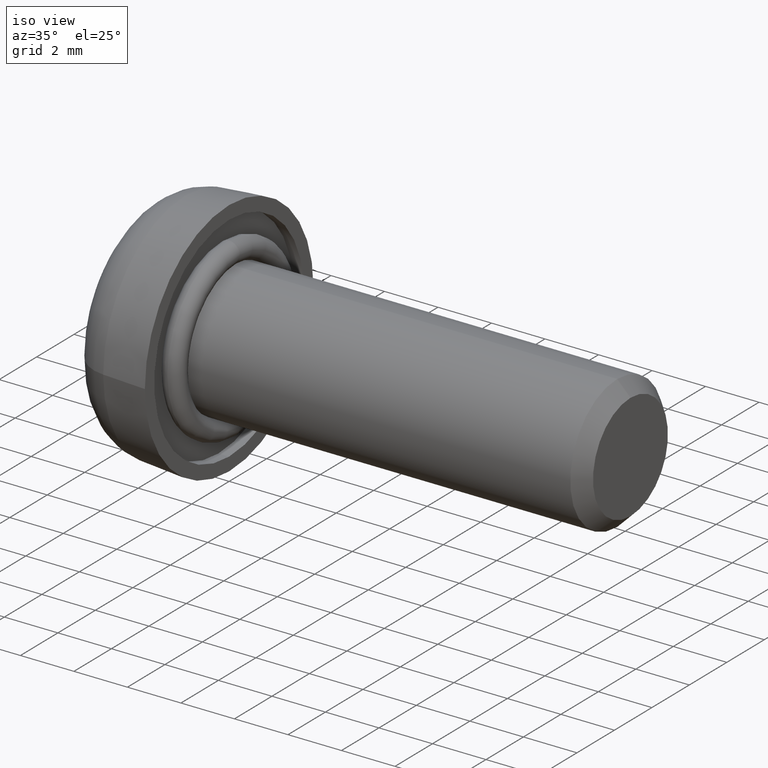
[diagram: clean part render]
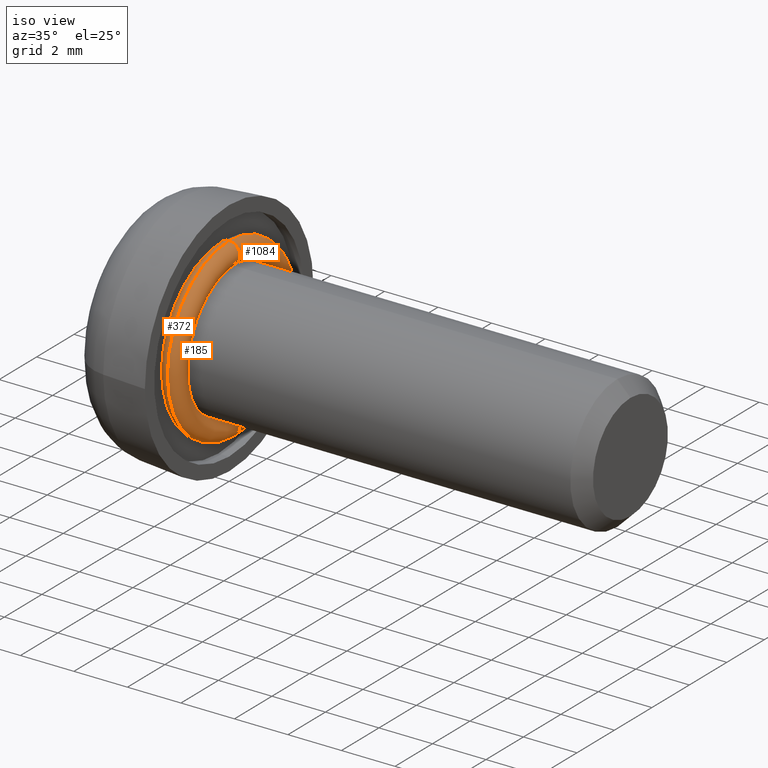
[diagram: same view with one multi-face feature highlighted, each face labeled with its STEP entity id]
A machine part, iso view. The highlighted faces form ONE feature: a constant-radius fillet chain: 3 tangent blend faces with common blend radius 0.4 mm. The faces share edges in the B-rep.
Their STEP definitions:
[1] entity #1084 (Torus):
#37 = VERTEX_POINT ( 'NONE', #373 ) ;
#70 = CIRCLE ( 'NONE', #605, 2.499999999999999600 ) ;
#79 = DIRECTION ( 'NONE',  ( 1.000000000000000000, -0.0000000000000000000, -0.0000000000000000000 ) ) ;
#106 = CIRCLE ( 'NONE', #1192, 0.4000000000000001900 ) ;
#116 = DIRECTION ( 'NONE',  ( 1.000000000000000000, -0.0000000000000000000, -0.0000000000000000000 ) ) ;
#139 = EDGE_CURVE ( 'NONE', #996, #819, #106, .T. ) ;
#162 = ORIENTED_EDGE ( 'NONE', *, *, #1039, .F. ) ;
#204 = AXIS2_PLACEMENT_3D ( 'NONE', #1121, #925, #329 ) ;
#230 = CARTESIAN_POINT ( 'NONE',  ( 0.0000000000000000000, 0.0000000000000000000, -3.299999999999999800 ) ) ;
#233 = CIRCLE ( 'NONE', #204, 0.4000000000000001900 ) ;
#241 = DIRECTION ( 'NONE',  ( 0.0000000000000000000, 1.000000000000000000, -1.224646799147353200E-016 ) ) ;
#283 = CARTESIAN_POINT ( 'NONE',  ( 0.0000000000000000000, 3.551475717527323800E-016, 2.899999999999999900 ) ) ;
#295 = ORIENTED_EDGE ( 'NONE', *, *, #139, .T. ) ;
#306 = EDGE_LOOP ( 'NONE', ( #983, #1079, #295, #162 ) ) ;
#329 = DIRECTION ( 'NONE',  ( 0.0000000000000000000, 0.0000000000000000000, -1.000000000000000000 ) ) ;
#338 = DIRECTION ( 'NONE',  ( 1.000000000000000000, -0.0000000000000000000, -0.0000000000000000000 ) ) ;
#349 = CARTESIAN_POINT ( 'NONE',  ( -4.898587196589413700E-017, 0.0000000000000000000, 0.0000000000000000000 ) ) ;
#373 = CARTESIAN_POINT ( 'NONE',  ( -4.898587196589412500E-017, 0.0000000000000000000, -2.499999999999999600 ) ) ;
#433 = DIRECTION ( 'NONE',  ( 0.0000000000000000000, 1.224646799147353200E-016, 1.000000000000000000 ) ) ;
#517 = AXIS2_PLACEMENT_3D ( 'NONE', #922, #116, #618 ) ;
#575 = CARTESIAN_POINT ( 'NONE',  ( 0.0000000000000000000, 4.041334437186265500E-016, 3.299999999999999800 ) ) ;
#605 = AXIS2_PLACEMENT_3D ( 'NONE', #349, #338, #1042 ) ;
#618 = DIRECTION ( 'NONE',  ( 0.0000000000000000000, 0.0000000000000000000, -1.000000000000000000 ) ) ;
#622 = EDGE_CURVE ( 'NONE', #958, #37, #233, .T. ) ;
#658 = DIRECTION ( 'NONE',  ( 0.0000000000000000000, 0.0000000000000000000, -1.000000000000000000 ) ) ;
#680 = CARTESIAN_POINT ( 'NONE',  ( -4.898587196589412500E-017, 3.061616997868382600E-016, 2.499999999999999600 ) ) ;
#819 = VERTEX_POINT ( 'NONE', #680 ) ;
#922 = CARTESIAN_POINT ( 'NONE',  ( 0.0000000000000000000, 0.0000000000000000000, 0.0000000000000000000 ) ) ;
#925 = DIRECTION ( 'NONE',  ( -0.0000000000000000000, -1.000000000000000000, -0.0000000000000000000 ) ) ;
#958 = VERTEX_POINT ( 'NONE', #230 ) ;
#962 = CARTESIAN_POINT ( 'NONE',  ( 0.0000000000000000000, 0.0000000000000000000, 0.0000000000000000000 ) ) ;
#983 = ORIENTED_EDGE ( 'NONE', *, *, #622, .F. ) ;
#996 = VERTEX_POINT ( 'NONE', #575 ) ;
#1004 = TOROIDAL_SURFACE ( 'NONE', #1083, 2.899999999999999900, 0.4000000000000000800 ) ;
#1039 = EDGE_CURVE ( 'NONE', #37, #819, #70, .T. ) ;
#1042 = DIRECTION ( 'NONE',  ( 0.0000000000000000000, 0.0000000000000000000, -1.000000000000000000 ) ) ;
#1079 = ORIENTED_EDGE ( 'NONE', *, *, #1249, .T. ) ;
#1083 = AXIS2_PLACEMENT_3D ( 'NONE', #962, #79, #658 ) ;
#1084 = ADVANCED_FACE ( 'NONE', ( #1259 ), #1004, .T. ) ;
#1121 = CARTESIAN_POINT ( 'NONE',  ( 0.0000000000000000000, 0.0000000000000000000, -2.899999999999999900 ) ) ;
#1164 = CIRCLE ( 'NONE', #517, 3.299999999999999800 ) ;
#1192 = AXIS2_PLACEMENT_3D ( 'NONE', #283, #241, #433 ) ;
#1249 = EDGE_CURVE ( 'NONE', #958, #996, #1164, .T. ) ;
#1259 = FACE_OUTER_BOUND ( 'NONE', #306, .T. ) ;
[2] entity #185 (Torus):
#12 = EDGE_CURVE ( 'NONE', #996, #958, #676, .T. ) ;
#37 = VERTEX_POINT ( 'NONE', #373 ) ;
#43 = CARTESIAN_POINT ( 'NONE',  ( -4.898587196589413700E-017, 0.0000000000000000000, 0.0000000000000000000 ) ) ;
#47 = CIRCLE ( 'NONE', #446, 2.499999999999999600 ) ;
#51 = AXIS2_PLACEMENT_3D ( 'NONE', #436, #231, #1120 ) ;
#61 = CARTESIAN_POINT ( 'NONE',  ( 0.0000000000000000000, 0.0000000000000000000, 0.0000000000000000000 ) ) ;
#67 = ORIENTED_EDGE ( 'NONE', *, *, #12, .T. ) ;
#106 = CIRCLE ( 'NONE', #1192, 0.4000000000000001900 ) ;
#125 = ORIENTED_EDGE ( 'NONE', *, *, #139, .F. ) ;
#139 = EDGE_CURVE ( 'NONE', #996, #819, #106, .T. ) ;
#185 = ADVANCED_FACE ( 'NONE', ( #363 ), #589, .T. ) ;
#192 = DIRECTION ( 'NONE',  ( 0.0000000000000000000, 0.0000000000000000000, -1.000000000000000000 ) ) ;
#204 = AXIS2_PLACEMENT_3D ( 'NONE', #1121, #925, #329 ) ;
#230 = CARTESIAN_POINT ( 'NONE',  ( 0.0000000000000000000, 0.0000000000000000000, -3.299999999999999800 ) ) ;
#231 = DIRECTION ( 'NONE',  ( 1.000000000000000000, -0.0000000000000000000, -0.0000000000000000000 ) ) ;
#233 = CIRCLE ( 'NONE', #204, 0.4000000000000001900 ) ;
#241 = DIRECTION ( 'NONE',  ( 0.0000000000000000000, 1.000000000000000000, -1.224646799147353200E-016 ) ) ;
#252 = EDGE_CURVE ( 'NONE', #819, #37, #47, .T. ) ;
#253 = ORIENTED_EDGE ( 'NONE', *, *, #252, .F. ) ;
#283 = CARTESIAN_POINT ( 'NONE',  ( 0.0000000000000000000, 3.551475717527323800E-016, 2.899999999999999900 ) ) ;
#329 = DIRECTION ( 'NONE',  ( 0.0000000000000000000, 0.0000000000000000000, -1.000000000000000000 ) ) ;
#363 = FACE_OUTER_BOUND ( 'NONE', #838, .T. ) ;
#373 = CARTESIAN_POINT ( 'NONE',  ( -4.898587196589412500E-017, 0.0000000000000000000, -2.499999999999999600 ) ) ;
#433 = DIRECTION ( 'NONE',  ( 0.0000000000000000000, 1.224646799147353200E-016, 1.000000000000000000 ) ) ;
#436 = CARTESIAN_POINT ( 'NONE',  ( 0.0000000000000000000, 0.0000000000000000000, 0.0000000000000000000 ) ) ;
#446 = AXIS2_PLACEMENT_3D ( 'NONE', #43, #576, #1024 ) ;
#463 = AXIS2_PLACEMENT_3D ( 'NONE', #61, #466, #192 ) ;
#466 = DIRECTION ( 'NONE',  ( 1.000000000000000000, -0.0000000000000000000, -0.0000000000000000000 ) ) ;
#575 = CARTESIAN_POINT ( 'NONE',  ( 0.0000000000000000000, 4.041334437186265500E-016, 3.299999999999999800 ) ) ;
#576 = DIRECTION ( 'NONE',  ( 1.000000000000000000, -0.0000000000000000000, -0.0000000000000000000 ) ) ;
#589 = TOROIDAL_SURFACE ( 'NONE', #51, 2.899999999999999900, 0.4000000000000000800 ) ;
#622 = EDGE_CURVE ( 'NONE', #958, #37, #233, .T. ) ;
#676 = CIRCLE ( 'NONE', #463, 3.299999999999999800 ) ;
#680 = CARTESIAN_POINT ( 'NONE',  ( -4.898587196589412500E-017, 3.061616997868382600E-016, 2.499999999999999600 ) ) ;
#768 = ORIENTED_EDGE ( 'NONE', *, *, #622, .T. ) ;
#819 = VERTEX_POINT ( 'NONE', #680 ) ;
#838 = EDGE_LOOP ( 'NONE', ( #125, #67, #768, #253 ) ) ;
#925 = DIRECTION ( 'NONE',  ( -0.0000000000000000000, -1.000000000000000000, -0.0000000000000000000 ) ) ;
#958 = VERTEX_POINT ( 'NONE', #230 ) ;
#996 = VERTEX_POINT ( 'NONE', #575 ) ;
#1024 = DIRECTION ( 'NONE',  ( 0.0000000000000000000, 0.0000000000000000000, -1.000000000000000000 ) ) ;
#1120 = DIRECTION ( 'NONE',  ( 0.0000000000000000000, 0.0000000000000000000, -1.000000000000000000 ) ) ;
#1121 = CARTESIAN_POINT ( 'NONE',  ( 0.0000000000000000000, 0.0000000000000000000, -2.899999999999999900 ) ) ;
#1192 = AXIS2_PLACEMENT_3D ( 'NONE', #283, #241, #433 ) ;
[3] entity #372 (Torus):
#6 = TOROIDAL_SURFACE ( 'NONE', #1235, 2.899999999999999900, 0.4000000000000000800 ) ;
#12 = EDGE_CURVE ( 'NONE', #996, #958, #676, .T. ) ;
#14 = DIRECTION ( 'NONE',  ( 0.0000000000000000000, 0.0000000000000000000, -1.000000000000000000 ) ) ;
#37 = VERTEX_POINT ( 'NONE', #373 ) ;
#43 = CARTESIAN_POINT ( 'NONE',  ( -4.898587196589413700E-017, 0.0000000000000000000, 0.0000000000000000000 ) ) ;
#47 = CIRCLE ( 'NONE', #446, 2.499999999999999600 ) ;
#61 = CARTESIAN_POINT ( 'NONE',  ( 0.0000000000000000000, 0.0000000000000000000, 0.0000000000000000000 ) ) ;
#83 = ORIENTED_EDGE ( 'NONE', *, *, #84, .F. ) ;
#84 = EDGE_CURVE ( 'NONE', #819, #996, #356, .T. ) ;
#91 = CARTESIAN_POINT ( 'NONE',  ( 0.0000000000000000000, 3.551475717527323800E-016, 2.899999999999999900 ) ) ;
#133 = DIRECTION ( 'NONE',  ( -0.0000000000000000000, -1.000000000000000000, -0.0000000000000000000 ) ) ;
#192 = DIRECTION ( 'NONE',  ( 0.0000000000000000000, 0.0000000000000000000, -1.000000000000000000 ) ) ;
#210 = ORIENTED_EDGE ( 'NONE', *, *, #252, .T. ) ;
#230 = CARTESIAN_POINT ( 'NONE',  ( 0.0000000000000000000, 0.0000000000000000000, -3.299999999999999800 ) ) ;
#252 = EDGE_CURVE ( 'NONE', #819, #37, #47, .T. ) ;
#305 = DIRECTION ( 'NONE',  ( 0.0000000000000000000, 0.0000000000000000000, -1.000000000000000000 ) ) ;
#356 = CIRCLE ( 'NONE', #853, 0.4000000000000001900 ) ;
#372 = ADVANCED_FACE ( 'NONE', ( #525 ), #6, .T. ) ;
#373 = CARTESIAN_POINT ( 'NONE',  ( -4.898587196589412500E-017, 0.0000000000000000000, -2.499999999999999600 ) ) ;
#380 = DIRECTION ( 'NONE',  ( 0.0000000000000000000, 1.224646799147353200E-016, 1.000000000000000000 ) ) ;
#383 = AXIS2_PLACEMENT_3D ( 'NONE', #1068, #133, #305 ) ;
#402 = CIRCLE ( 'NONE', #383, 0.4000000000000001900 ) ;
#404 = DIRECTION ( 'NONE',  ( 1.000000000000000000, -0.0000000000000000000, -0.0000000000000000000 ) ) ;
#446 = AXIS2_PLACEMENT_3D ( 'NONE', #43, #576, #1024 ) ;
#463 = AXIS2_PLACEMENT_3D ( 'NONE', #61, #466, #192 ) ;
#466 = DIRECTION ( 'NONE',  ( 1.000000000000000000, -0.0000000000000000000, -0.0000000000000000000 ) ) ;
#525 = FACE_OUTER_BOUND ( 'NONE', #1237, .T. ) ;
#575 = CARTESIAN_POINT ( 'NONE',  ( 0.0000000000000000000, 4.041334437186265500E-016, 3.299999999999999800 ) ) ;
#576 = DIRECTION ( 'NONE',  ( 1.000000000000000000, -0.0000000000000000000, -0.0000000000000000000 ) ) ;
#676 = CIRCLE ( 'NONE', #463, 3.299999999999999800 ) ;
#680 = CARTESIAN_POINT ( 'NONE',  ( -4.898587196589412500E-017, 3.061616997868382600E-016, 2.499999999999999600 ) ) ;
#697 = ORIENTED_EDGE ( 'NONE', *, *, #1221, .T. ) ;
#796 = CARTESIAN_POINT ( 'NONE',  ( 0.0000000000000000000, 0.0000000000000000000, 0.0000000000000000000 ) ) ;
#819 = VERTEX_POINT ( 'NONE', #680 ) ;
#853 = AXIS2_PLACEMENT_3D ( 'NONE', #91, #955, #380 ) ;
#955 = DIRECTION ( 'NONE',  ( 0.0000000000000000000, 1.000000000000000000, -1.224646799147353200E-016 ) ) ;
#958 = VERTEX_POINT ( 'NONE', #230 ) ;
#996 = VERTEX_POINT ( 'NONE', #575 ) ;
#1024 = DIRECTION ( 'NONE',  ( 0.0000000000000000000, 0.0000000000000000000, -1.000000000000000000 ) ) ;
#1068 = CARTESIAN_POINT ( 'NONE',  ( 0.0000000000000000000, 0.0000000000000000000, -2.899999999999999900 ) ) ;
#1181 = ORIENTED_EDGE ( 'NONE', *, *, #12, .F. ) ;
#1221 = EDGE_CURVE ( 'NONE', #37, #958, #402, .T. ) ;
#1235 = AXIS2_PLACEMENT_3D ( 'NONE', #796, #404, #14 ) ;
#1237 = EDGE_LOOP ( 'NONE', ( #1181, #83, #210, #697 ) ) ;